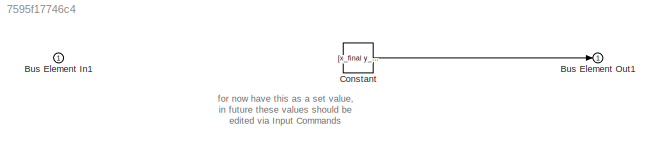
MODEL slx_7595f17746c4
KIND model
CONFIG AbsTol = auto
CONFIG EnableMultiTasking = off
CONFIG FixedStep = auto
CONFIG MaxStep = auto
CONFIG MinStep = auto
CONFIG RelTol = 1e-3
CONFIG SampleTimeConstraint = Unconstrained
CONFIG SolverName = VariableStepAuto
CONFIG StartTime = 0.0
CONFIG StopTime = 10.0
WORKSPACE source: mxarray member
WORKSPACE x_final = 1
WORKSPACE y_final = 1
WORKSPACE z_final = 1
BLOCK [Inport] Bus Element In1
BLOCK [Outport] Bus Element Out1
BLOCK [Constant] Constant
  Value = [x_final y_final z_final]
ANNOTATION (root): for now have this as a set value, in future these values should be edited via Input Commands
LINE Constant:1 -> Bus Element Out1:1
